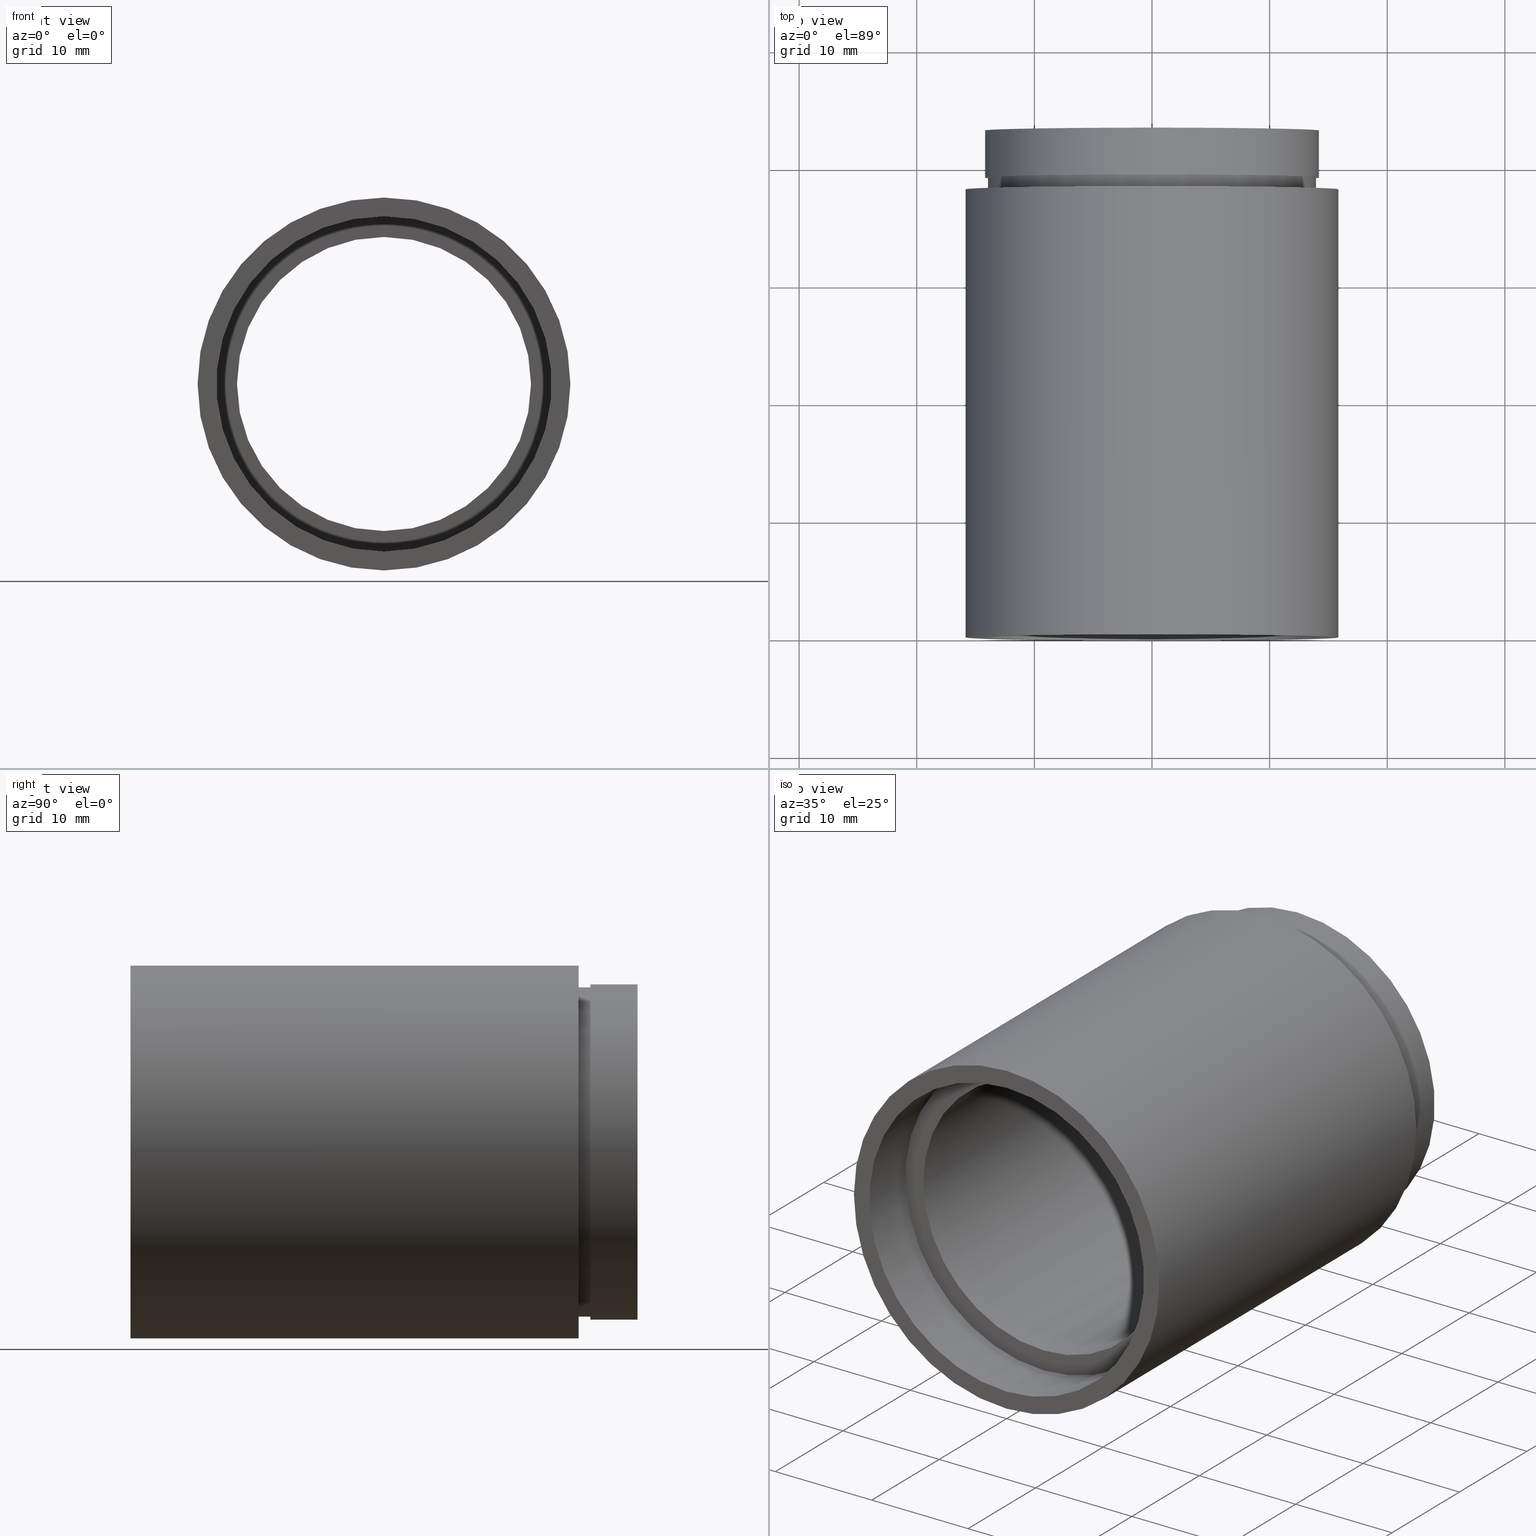
[diagram: canonical four-view strip — front | top / right | iso, engineering-drawing reading convention]
A machine part, canonical four-view strip (front | top / right | iso — engineering-drawing reading convention). The complete STEP part file that produces these views, byte-faithful:
ISO-10303-21;
HEADER;
FILE_DESCRIPTION (( 'STEP AP214' ),
    '1' );
FILE_NAME ('503046.STEP',
    '2019-09-06T06:12:58',
    ( '' ),
    ( '' ),
    'SwSTEP 2.0',
    'SolidWorks 2016',
    '' );
FILE_SCHEMA (( 'AUTOMOTIVE_DESIGN' ));
ENDSEC;

DATA;
#1 = CIRCLE ( 'NONE', #256, 14.00000000000001600 ) ;
#2 = PLANE ( 'NONE',  #366 ) ;
#3 = PRODUCT_DEFINITION ( 'δ֪', '', #525, #484 ) ;
#4 = ADVANCED_FACE ( 'NONE', ( #527, #531 ), #2, .F. ) ;
#5 = CARTESIAN_POINT ( 'NONE',  ( 0.0000000000000000000, 38.09999999999999400, 14.00000000000001600 ) ) ;
#6 = ADVANCED_FACE ( 'NONE', ( #476 ), #107, .T. ) ;
#7 = EDGE_LOOP ( 'NONE', ( #272, #188, #232, #441 ) ) ;
#8 = VECTOR ( 'NONE', #460, 1000.000000000000000 ) ;
#9 = DIRECTION ( 'NONE',  ( -0.0000000000000000000, 1.000000000000000000, -0.0000000000000000000 ) ) ;
#10 = CARTESIAN_POINT ( 'NONE',  ( 1.745121688784980200E-015, 161.3761669434274500, -14.25000000000001600 ) ) ;
#11 = LINE ( 'NONE', #199, #565 ) ;
#12 = VERTEX_POINT ( 'NONE', #5 ) ;
#13 = MECHANICAL_DESIGN_GEOMETRIC_PRESENTATION_REPRESENTATION (  '', ( #601 ), #619 ) ;
#14 =( NAMED_UNIT ( * ) SI_UNIT ( $, .STERADIAN. ) SOLID_ANGLE_UNIT ( ) );
#15 = APPLICATION_CONTEXT ( 'automotive_design' ) ;
#16 = ORIENTED_EDGE ( 'NONE', *, *, #443, .F. ) ;
#17 = EDGE_CURVE ( 'NONE', #12, #415, #181, .T. ) ;
#18 = CARTESIAN_POINT ( 'NONE',  ( 0.0000000000000000000, 39.09999999999999400, 0.0000000000000000000 ) ) ;
#19 = CYLINDRICAL_SURFACE ( 'NONE', #20, 12.50000000000002000 ) ;
#20 = AXIS2_PLACEMENT_3D ( 'NONE', #532, #539, #345 ) ;
#21 = EDGE_CURVE ( 'NONE', #415, #279, #570, .T. ) ;
#22 = CARTESIAN_POINT ( 'NONE',  ( 0.0000000000000000000, 4.500000000000032000, 0.0000000000000000000 ) ) ;
#23 = VECTOR ( 'NONE', #558, 1000.000000000000000 ) ;
#24 = APPLICATION_CONTEXT ( 'automotive_design' ) ;
#25 = PRODUCT_DEFINITION_SHAPE ( 'NONE', 'NONE',  #3 ) ;
#26 = CARTESIAN_POINT ( 'NONE',  ( 0.0000000000000000000, 4.499999999999976000, 0.0000000000000000000 ) ) ;
#27 = MECHANICAL_DESIGN_GEOMETRIC_PRESENTATION_REPRESENTATION (  '', ( #322 ), #89 ) ;
#28 = CIRCLE ( 'NONE', #396, 14.00000000000001600 ) ;
#29 = PRESENTATION_LAYER_ASSIGNMENT (  '', '', ( #583 ) ) ;
#30 = AXIS2_PLACEMENT_3D ( 'NONE', #436, #197, #61 ) ;
#31 = DIRECTION ( 'NONE',  ( -0.0000000000000000000, 1.000000000000000000, -0.0000000000000000000 ) ) ;
#32 = DIRECTION ( 'NONE',  ( 0.0000000000000000000, 0.0000000000000000000, 1.000000000000000000 ) ) ;
#33 = DIRECTION ( 'NONE',  ( -0.0000000000000000000, 1.000000000000000000, 0.0000000000000000000 ) ) ;
#34 = CARTESIAN_POINT ( 'NONE',  ( 12.50000000000002000, 43.09999999999999400, 0.0000000000000000000 ) ) ;
#35 = PRESENTATION_STYLE_ASSIGNMENT (( #65 ) ) ;
#36 = DIRECTION ( 'NONE',  ( -0.0000000000000000000, 1.000000000000000000, -0.0000000000000000000 ) ) ;
#37 = DIRECTION ( 'NONE',  ( 0.0000000000000000000, 0.0000000000000000000, 1.000000000000000000 ) ) ;
#38 = EDGE_LOOP ( 'NONE', ( #189, #217 ) ) ;
#39 = COLOUR_RGB ( '',1.000000000000000000, 1.000000000000000000, 1.000000000000000000 ) ;
#40 = PLANE ( 'NONE',  #519 ) ;
#41 = DIRECTION ( 'NONE',  ( 0.0000000000000000000, 0.0000000000000000000, 1.000000000000000000 ) ) ;
#42 = DIRECTION ( 'NONE',  ( 0.0000000000000000000, 0.0000000000000000000, 1.000000000000000000 ) ) ;
#43 = ORIENTED_EDGE ( 'NONE', *, *, #266, .F. ) ;
#44 = CIRCLE ( 'NONE', #351, 14.25000000000001600 ) ;
#45 = AXIS2_PLACEMENT_3D ( 'NONE', #609, #506, #599 ) ;
#46 = ORIENTED_EDGE ( 'NONE', *, *, #538, .T. ) ;
#47 = EDGE_LOOP ( 'NONE', ( #43, #151, #46, #575 ) ) ;
#48 = EDGE_CURVE ( 'NONE', #12, #485, #321, .T. ) ;
#49 = ORIENTED_EDGE ( 'NONE', *, *, #216, .F. ) ;
#50 = AXIS2_PLACEMENT_3D ( 'NONE', #249, #391, #386 ) ;
#51 = EDGE_CURVE ( 'NONE', #415, #12, #136, .T. ) ;
#52 = DIRECTION ( 'NONE',  ( -0.0000000000000000000, 1.000000000000000000, -0.0000000000000000000 ) ) ;
#53 = VERTEX_POINT ( 'NONE', #336 ) ;
#54 = DIRECTION ( 'NONE',  ( 0.0000000000000000000, 0.0000000000000000000, 1.000000000000000000 ) ) ;
#55 = AXIS2_PLACEMENT_3D ( 'NONE', #497, #501, #260 ) ;
#56 = MECHANICAL_DESIGN_GEOMETRIC_PRESENTATION_REPRESENTATION (  '', ( #583 ), #91 ) ;
#57 = CARTESIAN_POINT ( 'NONE',  ( 0.0000000000000000000, 5.499999999999976900, 0.0000000000000000000 ) ) ;
#58 = AXIS2_PLACEMENT_3D ( 'NONE', #100, #573, #191 ) ;
#59 = CARTESIAN_POINT ( 'NONE',  ( 0.0000000000000000000, 2.775557561562891400E-014, 14.25000000000000000 ) ) ;
#60 = CIRCLE ( 'NONE', #140, 15.85000000000002100 ) ;
#61 = DIRECTION ( 'NONE',  ( 0.0000000000000000000, 0.0000000000000000000, 1.000000000000000000 ) ) ;
#62 = ORIENTED_EDGE ( 'NONE', *, *, #611, .F. ) ;
#63 = EDGE_LOOP ( 'NONE', ( #95, #299, #103, #580 ) ) ;
#64 = PRODUCT_CONTEXT ( 'NONE', #24, 'mechanical' ) ;
#65 = SURFACE_STYLE_USAGE ( .BOTH. , #588 ) ;
#66 = ORIENTED_EDGE ( 'NONE', *, *, #344, .F. ) ;
#67 = SURFACE_SIDE_STYLE ('',( #360 ) ) ;
#68 = CIRCLE ( 'NONE', #618, 14.25000000000000000 ) ;
#69 = DIRECTION ( 'NONE',  ( 0.0000000000000000000, 0.0000000000000000000, 1.000000000000000000 ) ) ;
#70 = EDGE_CURVE ( 'NONE', #485, #279, #28, .T. ) ;
#71 = FILL_AREA_STYLE_COLOUR ( '', #134 ) ;
#72 = DIRECTION ( 'NONE',  ( 0.0000000000000000000, 0.0000000000000000000, 1.000000000000000000 ) ) ;
#73 = CIRCLE ( 'NONE', #50, 14.35000000000001900 ) ;
#74 =( GEOMETRIC_REPRESENTATION_CONTEXT ( 3 ) GLOBAL_UNCERTAINTY_ASSIGNED_CONTEXT ( ( #499 ) ) GLOBAL_UNIT_ASSIGNED_CONTEXT ( ( #174, #212, #405 ) ) REPRESENTATION_CONTEXT ( 'NONE', 'WORKASPACE' ) );
#75 = VERTEX_POINT ( 'NONE', #108 ) ;
#76 = SURFACE_SIDE_STYLE ('',( #500 ) ) ;
#77 = EDGE_CURVE ( 'NONE', #358, #75, #342, .T. ) ;
#78 = VERTEX_POINT ( 'NONE', #59 ) ;
#79 = CARTESIAN_POINT ( 'NONE',  ( 1.757368156776454300E-015, 4.499999999999976000, -14.35000000000001900 ) ) ;
#80 = STYLED_ITEM ( 'NONE', ( #392 ), #139 ) ;
#81 = CARTESIAN_POINT ( 'NONE',  ( 1.714505518806296400E-015, 39.09999999999999400, -14.00000000000001600 ) ) ;
#82 = ORIENTED_EDGE ( 'NONE', *, *, #344, .T. ) ;
#83 = EDGE_CURVE ( 'NONE', #358, #387, #11, .T. ) ;
#84 = CARTESIAN_POINT ( 'NONE',  ( 0.0000000000000000000, 43.10000000000000100, 0.0000000000000000000 ) ) ;
#85 =( NAMED_UNIT ( * ) SI_UNIT ( $, .STERADIAN. ) SOLID_ANGLE_UNIT ( ) );
#86 = ORIENTED_EDGE ( 'NONE', *, *, #202, .T. ) ;
#87 = ORIENTED_EDGE ( 'NONE', *, *, #145, .T. ) ;
#88 = DIRECTION ( 'NONE',  ( 0.0000000000000000000, 0.0000000000000000000, 1.000000000000000000 ) ) ;
#89 =( GEOMETRIC_REPRESENTATION_CONTEXT ( 3 ) GLOBAL_UNCERTAINTY_ASSIGNED_CONTEXT ( ( #99 ) ) GLOBAL_UNIT_ASSIGNED_CONTEXT ( ( #371, #312, #214 ) ) REPRESENTATION_CONTEXT ( 'NONE', 'WORKASPACE' ) );
#90 = FACE_OUTER_BOUND ( 'NONE', #63, .T. ) ;
#91 =( GEOMETRIC_REPRESENTATION_CONTEXT ( 3 ) GLOBAL_UNCERTAINTY_ASSIGNED_CONTEXT ( ( #383 ) ) GLOBAL_UNIT_ASSIGNED_CONTEXT ( ( #428, #147, #361 ) ) REPRESENTATION_CONTEXT ( 'NONE', 'WORKASPACE' ) );
#92 = EDGE_CURVE ( 'NONE', #109, #540, #467, .T. ) ;
#93 = ADVANCED_FACE ( 'NONE', ( #420, #195 ), #444, .F. ) ;
#94 = ORIENTED_EDGE ( 'NONE', *, *, #154, .T. ) ;
#95 = ORIENTED_EDGE ( 'NONE', *, *, #83, .F. ) ;
#96 = DIRECTION ( 'NONE',  ( -0.0000000000000000000, 1.000000000000000000, -0.0000000000000000000 ) ) ;
#97 = DIRECTION ( 'NONE',  ( 0.0000000000000000000, -0.0000000000000000000, -1.000000000000000000 ) ) ;
#98 = FACE_OUTER_BOUND ( 'NONE', #528, .T. ) ;
#99 = UNCERTAINTY_MEASURE_WITH_UNIT (LENGTH_MEASURE( 1.000000000000000100E-005 ), #371, 'distance_accuracy_value', 'NONE');
#100 = CARTESIAN_POINT ( 'NONE',  ( 0.0000000000000000000, 161.3761669434274500, 0.0000000000000000000 ) ) ;
#101 = ADVANCED_FACE ( 'NONE', ( #425 ), #19, .F. ) ;
#102 = VERTEX_POINT ( 'NONE', #530 ) ;
#103 = ORIENTED_EDGE ( 'NONE', *, *, #258, .T. ) ;
#104 = DIRECTION ( 'NONE',  ( -0.0000000000000000000, 1.000000000000000000, -0.0000000000000000000 ) ) ;
#105 = DIRECTION ( 'NONE',  ( -0.0000000000000000000, 1.000000000000000000, -0.0000000000000000000 ) ) ;
#106 = PRESENTATION_STYLE_ASSIGNMENT (( #277 ) ) ;
#107 = CYLINDRICAL_SURFACE ( 'NONE', #58, 15.85000000000002100 ) ;
#108 = CARTESIAN_POINT ( 'NONE',  ( 0.0000000000000000000, 4.499999999999976000, 14.35000000000001900 ) ) ;
#109 = VERTEX_POINT ( 'NONE', #113 ) ;
#110 =( NAMED_UNIT ( * ) SI_UNIT ( $, .STERADIAN. ) SOLID_ANGLE_UNIT ( ) );
#111 = PRESENTATION_LAYER_ASSIGNMENT (  '', '', ( #601 ) ) ;
#112 = EDGE_CURVE ( 'NONE', #434, #387, #73, .T. ) ;
#113 = CARTESIAN_POINT ( 'NONE',  ( 0.0000000000000000000, 43.10000000000000100, 14.25000000000001600 ) ) ;
#114 = ORIENTED_EDGE ( 'NONE', *, *, #511, .T. ) ;
#115 = PRESENTATION_STYLE_ASSIGNMENT (( #130 ) ) ;
#116 = PRESENTATION_LAYER_ASSIGNMENT (  '', '', ( #80 ) ) ;
#117 =( LENGTH_UNIT ( ) NAMED_UNIT ( * ) SI_UNIT ( .MILLI., .METRE. ) );
#118 = UNCERTAINTY_MEASURE_WITH_UNIT (LENGTH_MEASURE( 1.000000000000000100E-005 ), #349, 'distance_accuracy_value', 'NONE');
#119 = CARTESIAN_POINT ( 'NONE',  ( 0.0000000000000000000, 5.499999999999976900, 0.0000000000000000000 ) ) ;
#120 = AXIS2_PLACEMENT_3D ( 'NONE', #516, #269, #615 ) ;
#121 = EDGE_LOOP ( 'NONE', ( #16, #200, #94, #543 ) ) ;
#122 = SURFACE_STYLE_USAGE ( .BOTH. , #76 ) ;
#123 = ORIENTED_EDGE ( 'NONE', *, *, #275, .F. ) ;
#124 = EDGE_CURVE ( 'NONE', #384, #522, #159, .T. ) ;
#125 = CARTESIAN_POINT ( 'NONE',  ( 0.0000000000000000000, 2.775557561562891400E-014, 0.0000000000000000000 ) ) ;
#126 = DIRECTION ( 'NONE',  ( 0.0000000000000000000, 0.0000000000000000000, 1.000000000000000000 ) ) ;
#127 = LINE ( 'NONE', #357, #23 ) ;
#128 = DIRECTION ( 'NONE',  ( -0.0000000000000000000, 1.000000000000000000, -0.0000000000000000000 ) ) ;
#129 = DIRECTION ( 'NONE',  ( 0.0000000000000000000, 0.0000000000000000000, 1.000000000000000000 ) ) ;
#130 = SURFACE_STYLE_USAGE ( .BOTH. , #606 ) ;
#131 = SURFACE_STYLE_FILL_AREA ( #211 ) ;
#132 = PLANE ( 'NONE',  #340 ) ;
#133 = FILL_AREA_STYLE_COLOUR ( '', #250 ) ;
#134 = COLOUR_RGB ( '',1.000000000000000000, 1.000000000000000000, 1.000000000000000000 ) ;
#135 = EDGE_CURVE ( 'NONE', #555, #540, #146, .T. ) ;
#136 = CIRCLE ( 'NONE', #30, 14.00000000000001600 ) ;
#137 = COLOUR_RGB ( '',1.000000000000000000, 1.000000000000000000, 1.000000000000000000 ) ;
#138 = ORIENTED_EDGE ( 'NONE', *, *, #511, .F. ) ;
#139 = ADVANCED_FACE ( 'NONE', ( #251 ), #242, .F. ) ;
#140 = AXIS2_PLACEMENT_3D ( 'NONE', #374, #320, #42 ) ;
#141 = ADVANCED_FACE ( 'NONE', ( #591 ), #257, .F. ) ;
#142 = EDGE_LOOP ( 'NONE', ( #461, #301 ) ) ;
#143 = DIRECTION ( 'NONE',  ( 0.0000000000000000000, 0.0000000000000000000, 1.000000000000000000 ) ) ;
#144 = SURFACE_STYLE_FILL_AREA ( #622 ) ;
#145 = EDGE_CURVE ( 'NONE', #616, #555, #44, .T. ) ;
#146 = LINE ( 'NONE', #10, #513 ) ;
#147 =( NAMED_UNIT ( * ) PLANE_ANGLE_UNIT ( ) SI_UNIT ( $, .RADIAN. ) );
#148 = ADVANCED_FACE ( 'NONE', ( #346 ), #408, .F. ) ;
#149 = MECHANICAL_DESIGN_GEOMETRIC_PRESENTATION_REPRESENTATION (  '', ( #80 ), #177 ) ;
#150 = FACE_BOUND ( 'NONE', #364, .T. ) ;
#151 = ORIENTED_EDGE ( 'NONE', *, *, #604, .T. ) ;
#152 = AXIS2_PLACEMENT_3D ( 'NONE', #26, #203, #72 ) ;
#153 = AXIS2_PLACEMENT_3D ( 'NONE', #562, #230, #88 ) ;
#154 = EDGE_CURVE ( 'NONE', #308, #430, #495, .T. ) ;
#155 = DIRECTION ( 'NONE',  ( -0.0000000000000000000, 1.000000000000000000, -0.0000000000000000000 ) ) ;
#156 = DIRECTION ( 'NONE',  ( 0.0000000000000000000, 0.0000000000000000000, 1.000000000000000000 ) ) ;
#157 = ORIENTED_EDGE ( 'NONE', *, *, #154, .F. ) ;
#158 = DIRECTION ( 'NONE',  ( -0.0000000000000000000, 1.000000000000000000, -0.0000000000000000000 ) ) ;
#159 = LINE ( 'NONE', #196, #265 ) ;
#160 =( NAMED_UNIT ( * ) PLANE_ANGLE_UNIT ( ) SI_UNIT ( $, .RADIAN. ) );
#161 = ORIENTED_EDGE ( 'NONE', *, *, #237, .T. ) ;
#162 = SHAPE_DEFINITION_REPRESENTATION ( #25, #399 ) ;
#163 = PRODUCT_RELATED_PRODUCT_CATEGORY ( 'part', '', ( #620 ) ) ;
#164 = ORIENTED_EDGE ( 'NONE', *, *, #287, .F. ) ;
#165 =( NAMED_UNIT ( * ) PLANE_ANGLE_UNIT ( ) SI_UNIT ( $, .RADIAN. ) );
#166 = UNCERTAINTY_MEASURE_WITH_UNIT (LENGTH_MEASURE( 1.000000000000000100E-005 ), #209, 'distance_accuracy_value', 'NONE');
#167 = CARTESIAN_POINT ( 'NONE',  ( 0.0000000000000000000, -2.775557561562891400E-014, 15.85000000000002100 ) ) ;
#168 = ORIENTED_EDGE ( 'NONE', *, *, #443, .T. ) ;
#169 = DIRECTION ( 'NONE',  ( -0.0000000000000000000, 1.000000000000000000, -0.0000000000000000000 ) ) ;
#170 = DIRECTION ( 'NONE',  ( 0.0000000000000000000, 0.0000000000000000000, 1.000000000000000000 ) ) ;
#171 = EDGE_LOOP ( 'NONE', ( #86, #624 ) ) ;
#172 = EDGE_LOOP ( 'NONE', ( #402, #288 ) ) ;
#173 = DIRECTION ( 'NONE',  ( 0.0000000000000000000, 0.0000000000000000000, 1.000000000000000000 ) ) ;
#174 =( LENGTH_UNIT ( ) NAMED_UNIT ( * ) SI_UNIT ( .MILLI., .METRE. ) );
#175 = ORIENTED_EDGE ( 'NONE', *, *, #135, .T. ) ;
#176 = EDGE_LOOP ( 'NONE', ( #62, #157 ) ) ;
#177 =( GEOMETRIC_REPRESENTATION_CONTEXT ( 3 ) GLOBAL_UNCERTAINTY_ASSIGNED_CONTEXT ( ( #118 ) ) GLOBAL_UNIT_ASSIGNED_CONTEXT ( ( #349, #546, #452 ) ) REPRESENTATION_CONTEXT ( 'NONE', 'WORKASPACE' ) );
#178 = CIRCLE ( 'NONE', #568, 14.25000000000001600 ) ;
#179 = CARTESIAN_POINT ( 'NONE',  ( 1.745121688784978200E-015, 4.500000000000032000, -14.25000000000000000 ) ) ;
#180 = FILL_AREA_STYLE ('',( #564 ) ) ;
#181 = CIRCLE ( 'NONE', #328, 14.00000000000001600 ) ;
#182 = SURFACE_STYLE_FILL_AREA ( #442 ) ;
#183 = MECHANICAL_DESIGN_GEOMETRIC_PRESENTATION_REPRESENTATION (  '', ( #487 ), #385 ) ;
#184 = PRESENTATION_LAYER_ASSIGNMENT (  '', '', ( #406 ) ) ;
#185 = EDGE_CURVE ( 'NONE', #555, #616, #178, .T. ) ;
#186 = CARTESIAN_POINT ( 'NONE',  ( 1.745121688784980200E-015, 43.10000000000000100, -14.25000000000001600 ) ) ;
#187 = CYLINDRICAL_SURFACE ( 'NONE', #245, 14.25000000000001600 ) ;
#188 = ORIENTED_EDGE ( 'NONE', *, *, #51, .T. ) ;
#189 = ORIENTED_EDGE ( 'NONE', *, *, #112, .F. ) ;
#190 = FILL_AREA_STYLE_COLOUR ( '', #584 ) ;
#191 = DIRECTION ( 'NONE',  ( 0.0000000000000000000, 0.0000000000000000000, 1.000000000000000000 ) ) ;
#192 = DIRECTION ( 'NONE',  ( 0.0000000000000000000, 0.0000000000000000000, 1.000000000000000000 ) ) ;
#193 = VECTOR ( 'NONE', #309, 1000.000000000000000 ) ;
#194 = CIRCLE ( 'NONE', #120, 15.85000000000002100 ) ;
#195 = FACE_OUTER_BOUND ( 'NONE', #171, .T. ) ;
#196 = CARTESIAN_POINT ( 'NONE',  ( 0.0000000000000000000, 161.3761669434274500, 12.50000000000002000 ) ) ;
#197 = DIRECTION ( 'NONE',  ( -0.0000000000000000000, 1.000000000000000000, -0.0000000000000000000 ) ) ;
#198 = DIRECTION ( 'NONE',  ( 0.0000000000000000000, 0.0000000000000000000, 1.000000000000000000 ) ) ;
#199 = CARTESIAN_POINT ( 'NONE',  ( 1.757368156776454300E-015, 161.3761669434274500, -14.35000000000001900 ) ) ;
#200 = ORIENTED_EDGE ( 'NONE', *, *, #293, .T. ) ;
#201 = ORIENTED_EDGE ( 'NONE', *, *, #17, .T. ) ;
#202 = EDGE_CURVE ( 'NONE', #75, #358, #517, .T. ) ;
#203 = DIRECTION ( 'NONE',  ( -0.0000000000000000000, 1.000000000000000000, -0.0000000000000000000 ) ) ;
#204 = LINE ( 'NONE', #417, #8 ) ;
#205 = EDGE_LOOP ( 'NONE', ( #602, #479 ) ) ;
#206 = FILL_AREA_STYLE ('',( #71 ) ) ;
#207 = UNCERTAINTY_MEASURE_WITH_UNIT (LENGTH_MEASURE( 1.000000000000000100E-005 ), #466, 'distance_accuracy_value', 'NONE');
#208 = ORIENTED_EDGE ( 'NONE', *, *, #325, .T. ) ;
#209 =( LENGTH_UNIT ( ) NAMED_UNIT ( * ) SI_UNIT ( .MILLI., .METRE. ) );
#210 = CYLINDRICAL_SURFACE ( 'NONE', #303, 12.50000000000002000 ) ;
#211 = FILL_AREA_STYLE ('',( #243 ) ) ;
#212 =( NAMED_UNIT ( * ) PLANE_ANGLE_UNIT ( ) SI_UNIT ( $, .RADIAN. ) );
#213 = AXIS2_PLACEMENT_3D ( 'NONE', #119, #350, #69 ) ;
#214 =( NAMED_UNIT ( * ) SI_UNIT ( $, .STERADIAN. ) SOLID_ANGLE_UNIT ( ) );
#215 = DIRECTION ( 'NONE',  ( -0.0000000000000000000, 1.000000000000000000, -0.0000000000000000000 ) ) ;
#216 = EDGE_CURVE ( 'NONE', #594, #384, #274, .T. ) ;
#217 = ORIENTED_EDGE ( 'NONE', *, *, #379, .F. ) ;
#218 = FILL_AREA_STYLE ('',( #515 ) ) ;
#219 = DIRECTION ( 'NONE',  ( -0.0000000000000000000, 1.000000000000000000, -0.0000000000000000000 ) ) ;
#220 = DIRECTION ( 'NONE',  ( -0.0000000000000000000, 1.000000000000000000, -0.0000000000000000000 ) ) ;
#221 = DIRECTION ( 'NONE',  ( -0.0000000000000000000, 1.000000000000000000, -0.0000000000000000000 ) ) ;
#222 = DIRECTION ( 'NONE',  ( -0.0000000000000000000, 1.000000000000000000, -0.0000000000000000000 ) ) ;
#223 = ORIENTED_EDGE ( 'NONE', *, *, #275, .T. ) ;
#224 = DIRECTION ( 'NONE',  ( -0.0000000000000000000, 1.000000000000000000, 0.0000000000000000000 ) ) ;
#225 = DIRECTION ( 'NONE',  ( -0.0000000000000000000, 1.000000000000000000, -0.0000000000000000000 ) ) ;
#226 = DIRECTION ( 'NONE',  ( -0.0000000000000000000, 1.000000000000000000, -0.0000000000000000000 ) ) ;
#227 = PRESENTATION_LAYER_ASSIGNMENT (  '', '', ( #322 ) ) ;
#228 = SURFACE_STYLE_USAGE ( .BOTH. , #518 ) ;
#229 = UNCERTAINTY_MEASURE_WITH_UNIT (LENGTH_MEASURE( 1.000000000000000100E-005 ), #117, 'distance_accuracy_value', 'NONE');
#230 = DIRECTION ( 'NONE',  ( -0.0000000000000000000, 1.000000000000000000, -0.0000000000000000000 ) ) ;
#231 = LINE ( 'NONE', #514, #331 ) ;
#232 = ORIENTED_EDGE ( 'NONE', *, *, #48, .T. ) ;
#233 = SURFACE_SIDE_STYLE ('',( #144 ) ) ;
#234 = DIRECTION ( 'NONE',  ( 0.0000000000000000000, -1.000000000000000000, 0.0000000000000000000 ) ) ;
#235 = PRESENTATION_STYLE_ASSIGNMENT (( #447 ) ) ;
#236 = ORIENTED_EDGE ( 'NONE', *, *, #237, .F. ) ;
#237 = EDGE_CURVE ( 'NONE', #384, #594, #295, .T. ) ;
#238 = DIRECTION ( 'NONE',  ( -0.0000000000000000000, 1.000000000000000000, -0.0000000000000000000 ) ) ;
#239 = PRESENTATION_LAYER_ASSIGNMENT (  '', '', ( #268 ) ) ;
#240 = EDGE_CURVE ( 'NONE', #53, #492, #282, .T. ) ;
#241 = EDGE_LOOP ( 'NONE', ( #400, #329 ) ) ;
#242 = CYLINDRICAL_SURFACE ( 'NONE', #507, 14.25000000000000000 ) ;
#243 = FILL_AREA_STYLE_COLOUR ( '', #382 ) ;
#244 = AXIS2_PLACEMENT_3D ( 'NONE', #414, #264, #381 ) ;
#245 = AXIS2_PLACEMENT_3D ( 'NONE', #470, #318, #473 ) ;
#246 = DIRECTION ( 'NONE',  ( -0.0000000000000000000, 1.000000000000000000, -0.0000000000000000000 ) ) ;
#247 = VERTEX_POINT ( 'NONE', #167 ) ;
#248 = EDGE_CURVE ( 'NONE', #279, #485, #1, .T. ) ;
#249 = CARTESIAN_POINT ( 'NONE',  ( 0.0000000000000000000, 5.499999999999976900, 0.0000000000000000000 ) ) ;
#250 = COLOUR_RGB ( '',1.000000000000000000, 1.000000000000000000, 1.000000000000000000 ) ;
#251 = FACE_OUTER_BOUND ( 'NONE', #121, .T. ) ;
#252 = CARTESIAN_POINT ( 'NONE',  ( 0.0000000000000000000, 0.0000000000000000000, 0.0000000000000000000 ) ) ;
#253 = CARTESIAN_POINT ( 'NONE',  ( 0.0000000000000000000, 39.09999999999999400, 0.0000000000000000000 ) ) ;
#254 = ORIENTED_EDGE ( 'NONE', *, *, #51, .F. ) ;
#255 = DIRECTION ( 'NONE',  ( -0.0000000000000000000, 1.000000000000000000, -0.0000000000000000000 ) ) ;
#256 = AXIS2_PLACEMENT_3D ( 'NONE', #267, #221, #170 ) ;
#257 = CYLINDRICAL_SURFACE ( 'NONE', #55, 14.35000000000001900 ) ;
#258 = EDGE_CURVE ( 'NONE', #75, #434, #270, .T. ) ;
#259 = ORIENTED_EDGE ( 'NONE', *, *, #480, .F. ) ;
#260 = DIRECTION ( 'NONE',  ( 0.0000000000000000000, 0.0000000000000000000, 1.000000000000000000 ) ) ;
#261 = CARTESIAN_POINT ( 'NONE',  ( 0.0000000000000000000, 161.3761669434274500, 0.0000000000000000000 ) ) ;
#262 = CARTESIAN_POINT ( 'NONE',  ( 0.0000000000000000000, 161.3761669434274500, 0.0000000000000000000 ) ) ;
#263 = CARTESIAN_POINT ( 'NONE',  ( 0.0000000000000000000, 161.3761669434274500, 0.0000000000000000000 ) ) ;
#264 = DIRECTION ( 'NONE',  ( -0.0000000000000000000, 1.000000000000000000, -0.0000000000000000000 ) ) ;
#265 = VECTOR ( 'NONE', #9, 1000.000000000000000 ) ;
#266 = EDGE_CURVE ( 'NONE', #102, #53, #534, .T. ) ;
#267 = CARTESIAN_POINT ( 'NONE',  ( 0.0000000000000000000, 39.09999999999999400, 0.0000000000000000000 ) ) ;
#268 = STYLED_ITEM ( 'NONE', ( #35 ), #101 ) ;
#269 = DIRECTION ( 'NONE',  ( -0.0000000000000000000, 1.000000000000000000, -0.0000000000000000000 ) ) ;
#270 = LINE ( 'NONE', #612, #193 ) ;
#271 = DIRECTION ( 'NONE',  ( 0.0000000000000000000, 0.0000000000000000000, 1.000000000000000000 ) ) ;
#272 = ORIENTED_EDGE ( 'NONE', *, *, #21, .F. ) ;
#273 = AXIS2_PLACEMENT_3D ( 'NONE', #483, #238, #192 ) ;
#274 = CIRCLE ( 'NONE', #474, 12.50000000000002000 ) ;
#275 = EDGE_CURVE ( 'NONE', #317, #522, #389, .T. ) ;
#276 = ORIENTED_EDGE ( 'NONE', *, *, #293, .F. ) ;
#277 = SURFACE_STYLE_USAGE ( .BOTH. , #233 ) ;
#278 = ADVANCED_FACE ( 'NONE', ( #150, #314 ), #40, .F. ) ;
#279 = VERTEX_POINT ( 'NONE', #81 ) ;
#280 = ORIENTED_EDGE ( 'NONE', *, *, #92, .F. ) ;
#281 = CARTESIAN_POINT ( 'NONE',  ( 14.00000000000001600, 38.09999999999998700, 0.0000000000000000000 ) ) ;
#282 = CIRCLE ( 'NONE', #454, 15.85000000000002100 ) ;
#283 = AXIS2_PLACEMENT_3D ( 'NONE', #512, #31, #463 ) ;
#284 = CIRCLE ( 'NONE', #273, 14.25000000000000000 ) ;
#285 =( NAMED_UNIT ( * ) PLANE_ANGLE_UNIT ( ) SI_UNIT ( $, .RADIAN. ) );
#286 = SURFACE_STYLE_FILL_AREA ( #585 ) ;
#287 = EDGE_CURVE ( 'NONE', #78, #557, #68, .T. ) ;
#288 = ORIENTED_EDGE ( 'NONE', *, *, #248, .T. ) ;
#289 =( LENGTH_UNIT ( ) NAMED_UNIT ( * ) SI_UNIT ( .MILLI., .METRE. ) );
#290 = PRESENTATION_STYLE_ASSIGNMENT (( #228 ) ) ;
#291 = ORIENTED_EDGE ( 'NONE', *, *, #70, .F. ) ;
#292 = EDGE_LOOP ( 'NONE', ( #201, #496, #291, #413 ) ) ;
#293 = EDGE_CURVE ( 'NONE', #557, #308, #204, .T. ) ;
#294 = DIRECTION ( 'NONE',  ( -0.0000000000000000000, 1.000000000000000000, -0.0000000000000000000 ) ) ;
#295 = CIRCLE ( 'NONE', #213, 12.50000000000002000 ) ;
#296 = AXIS2_PLACEMENT_3D ( 'NONE', #491, #104, #490 ) ;
#297 = SURFACE_STYLE_USAGE ( .BOTH. , #450 ) ;
#298 = COLOUR_RGB ( '',1.000000000000000000, 1.000000000000000000, 1.000000000000000000 ) ;
#299 = ORIENTED_EDGE ( 'NONE', *, *, #202, .F. ) ;
#300 = DIRECTION ( 'NONE',  ( -0.0000000000000000000, 1.000000000000000000, -0.0000000000000000000 ) ) ;
#301 = ORIENTED_EDGE ( 'NONE', *, *, #240, .T. ) ;
#302 = SURFACE_SIDE_STYLE ('',( #131 ) ) ;
#303 = AXIS2_PLACEMENT_3D ( 'NONE', #262, #359, #37 ) ;
#304 =( GEOMETRIC_REPRESENTATION_CONTEXT ( 3 ) GLOBAL_UNCERTAINTY_ASSIGNED_CONTEXT ( ( #472 ) ) GLOBAL_UNIT_ASSIGNED_CONTEXT ( ( #422, #567, #85 ) ) REPRESENTATION_CONTEXT ( 'NONE', 'WORKASPACE' ) );
#305 = DIRECTION ( 'NONE',  ( 0.0000000000000000000, -0.0000000000000000000, -1.000000000000000000 ) ) ;
#306 = CYLINDRICAL_SURFACE ( 'NONE', #489, 14.00000000000001600 ) ;
#307 = EDGE_CURVE ( 'NONE', #540, #109, #524, .T. ) ;
#308 = VERTEX_POINT ( 'NONE', #179 ) ;
#309 = DIRECTION ( 'NONE',  ( -0.0000000000000000000, 1.000000000000000000, -0.0000000000000000000 ) ) ;
#310 = ORIENTED_EDGE ( 'NONE', *, *, #258, .F. ) ;
#311 = ORIENTED_EDGE ( 'NONE', *, *, #124, .T. ) ;
#312 =( NAMED_UNIT ( * ) PLANE_ANGLE_UNIT ( ) SI_UNIT ( $, .RADIAN. ) );
#313 = EDGE_LOOP ( 'NONE', ( #49, #114, #223, #505 ) ) ;
#314 = FACE_OUTER_BOUND ( 'NONE', #241, .T. ) ;
#315 = DIRECTION ( 'NONE',  ( 0.0000000000000000000, 0.0000000000000000000, 1.000000000000000000 ) ) ;
#316 = PLANE ( 'NONE',  #551 ) ;
#317 = VERTEX_POINT ( 'NONE', #362 ) ;
#318 = DIRECTION ( 'NONE',  ( -0.0000000000000000000, 1.000000000000000000, -0.0000000000000000000 ) ) ;
#319 = CARTESIAN_POINT ( 'NONE',  ( 0.0000000000000000000, 38.09999999999999400, 15.85000000000002100 ) ) ;
#320 = DIRECTION ( 'NONE',  ( -0.0000000000000000000, 1.000000000000000000, -0.0000000000000000000 ) ) ;
#321 = LINE ( 'NONE', #427, #548 ) ;
#322 = STYLED_ITEM ( 'NONE', ( #545 ), #334 ) ;
#323 = CARTESIAN_POINT ( 'NONE',  ( 0.0000000000000000000, 161.3761669434274500, 0.0000000000000000000 ) ) ;
#324 = SURFACE_STYLE_FILL_AREA ( #411 ) ;
#325 = EDGE_CURVE ( 'NONE', #616, #109, #127, .T. ) ;
#326 = FACE_OUTER_BOUND ( 'NONE', #504, .T. ) ;
#327 = ORIENTED_EDGE ( 'NONE', *, *, #574, .F. ) ;
#328 = AXIS2_PLACEMENT_3D ( 'NONE', #586, #581, #198 ) ;
#329 = ORIENTED_EDGE ( 'NONE', *, *, #307, .T. ) ;
#330 = CARTESIAN_POINT ( 'NONE',  ( 1.714505518806296400E-015, 161.3761669434274500, -14.00000000000001600 ) ) ;
#331 = VECTOR ( 'NONE', #215, 1000.000000000000000 ) ;
#332 = AXIS2_PLACEMENT_3D ( 'NONE', #536, #158, #590 ) ;
#333 = ORIENTED_EDGE ( 'NONE', *, *, #266, .T. ) ;
#334 = ADVANCED_FACE ( 'NONE', ( #448 ), #210, .F. ) ;
#335 = UNCERTAINTY_MEASURE_WITH_UNIT (LENGTH_MEASURE( 1.000000000000000100E-005 ), #289, 'distance_accuracy_value', 'NONE');
#336 = CARTESIAN_POINT ( 'NONE',  ( 1.941065176648557100E-015, 38.09999999999999400, -15.85000000000002100 ) ) ;
#337 = ADVANCED_FACE ( 'NONE', ( #397, #597 ), #132, .F. ) ;
#338 = CIRCLE ( 'NONE', #244, 12.50000000000002000 ) ;
#339 = DIRECTION ( 'NONE',  ( -0.0000000000000000000, 1.000000000000000000, -0.0000000000000000000 ) ) ;
#340 = AXIS2_PLACEMENT_3D ( 'NONE', #510, #224, #559 ) ;
#341 = AXIS2_PLACEMENT_3D ( 'NONE', #553, #33, #373 ) ;
#342 = CIRCLE ( 'NONE', #296, 14.35000000000001900 ) ;
#343 = EDGE_LOOP ( 'NONE', ( #138, #236, #311, #82 ) ) ;
#344 = EDGE_CURVE ( 'NONE', #522, #317, #338, .T. ) ;
#345 = DIRECTION ( 'NONE',  ( 0.0000000000000000000, 0.0000000000000000000, 1.000000000000000000 ) ) ;
#346 = FACE_OUTER_BOUND ( 'NONE', #589, .T. ) ;
#347 = EDGE_LOOP ( 'NONE', ( #161, #446 ) ) ;
#348 = CARTESIAN_POINT ( 'NONE',  ( 0.0000000000000000000, 38.09999999999999400, 0.0000000000000000000 ) ) ;
#349 =( LENGTH_UNIT ( ) NAMED_UNIT ( * ) SI_UNIT ( .MILLI., .METRE. ) );
#350 = DIRECTION ( 'NONE',  ( -0.0000000000000000000, 1.000000000000000000, -0.0000000000000000000 ) ) ;
#351 = AXIS2_PLACEMENT_3D ( 'NONE', #398, #255, #457 ) ;
#352 =( NAMED_UNIT ( * ) SI_UNIT ( $, .STERADIAN. ) SOLID_ANGLE_UNIT ( ) );
#353 = CARTESIAN_POINT ( 'NONE',  ( 0.0000000000000000000, 5.499999999999976900, 12.50000000000002000 ) ) ;
#354 = VECTOR ( 'NONE', #52, 1000.000000000000000 ) ;
#355 = PRESENTATION_STYLE_ASSIGNMENT (( #297 ) ) ;
#356 = ORIENTED_EDGE ( 'NONE', *, *, #287, .T. ) ;
#357 = CARTESIAN_POINT ( 'NONE',  ( 0.0000000000000000000, 161.3761669434274500, 14.25000000000001600 ) ) ;
#358 = VERTEX_POINT ( 'NONE', #79 ) ;
#359 = DIRECTION ( 'NONE',  ( -0.0000000000000000000, 1.000000000000000000, -0.0000000000000000000 ) ) ;
#360 = SURFACE_STYLE_FILL_AREA ( #206 ) ;
#361 =( NAMED_UNIT ( * ) SI_UNIT ( $, .STERADIAN. ) SOLID_ANGLE_UNIT ( ) );
#362 = CARTESIAN_POINT ( 'NONE',  ( 1.530808498934193900E-015, 43.10000000000000100, -12.50000000000002000 ) ) ;
#363 = CARTESIAN_POINT ( 'NONE',  ( 0.0000000000000000000, 5.499999999999976900, 14.35000000000001900 ) ) ;
#364 = EDGE_LOOP ( 'NONE', ( #66, #123 ) ) ;
#365 = VECTOR ( 'NONE', #225, 1000.000000000000000 ) ;
#366 = AXIS2_PLACEMENT_3D ( 'NONE', #281, #234, #97 ) ;
#367 = CARTESIAN_POINT ( 'NONE',  ( 0.0000000000000000000, 43.10000000000000100, 12.50000000000002000 ) ) ;
#368 = CARTESIAN_POINT ( 'NONE',  ( 0.0000000000000000000, 2.775557561562891400E-014, 0.0000000000000000000 ) ) ;
#369 = CARTESIAN_POINT ( 'NONE',  ( 0.0000000000000000000, -2.775557561562891400E-014, 0.0000000000000000000 ) ) ;
#370 = MECHANICAL_DESIGN_GEOMETRIC_PRESENTATION_REPRESENTATION (  '', ( #268 ), #608 ) ;
#371 =( LENGTH_UNIT ( ) NAMED_UNIT ( * ) SI_UNIT ( .MILLI., .METRE. ) );
#372 = CARTESIAN_POINT ( 'NONE',  ( 0.0000000000000000000, 39.09999999999999400, 14.00000000000001600 ) ) ;
#373 = DIRECTION ( 'NONE',  ( 0.0000000000000000000, 0.0000000000000000000, 1.000000000000000000 ) ) ;
#374 = CARTESIAN_POINT ( 'NONE',  ( 0.0000000000000000000, -2.775557561562891400E-014, 0.0000000000000000000 ) ) ;
#375 = COLOUR_RGB ( '',1.000000000000000000, 1.000000000000000000, 1.000000000000000000 ) ;
#376 = AXIS2_PLACEMENT_3D ( 'NONE', #57, #404, #603 ) ;
#377 = ORIENTED_EDGE ( 'NONE', *, *, #17, .F. ) ;
#378 = ADVANCED_FACE ( 'NONE', ( #90 ), #471, .F. ) ;
#379 = EDGE_CURVE ( 'NONE', #387, #434, #458, .T. ) ;
#380 = ADVANCED_FACE ( 'NONE', ( #605 ), #412, .T. ) ;
#381 = DIRECTION ( 'NONE',  ( 0.0000000000000000000, 0.0000000000000000000, 1.000000000000000000 ) ) ;
#382 = COLOUR_RGB ( '',1.000000000000000000, 1.000000000000000000, 1.000000000000000000 ) ;
#383 = UNCERTAINTY_MEASURE_WITH_UNIT (LENGTH_MEASURE( 1.000000000000000100E-005 ), #428, 'distance_accuracy_value', 'NONE');
#384 = VERTEX_POINT ( 'NONE', #353 ) ;
#385 =( GEOMETRIC_REPRESENTATION_CONTEXT ( 3 ) GLOBAL_UNCERTAINTY_ASSIGNED_CONTEXT ( ( #229 ) ) GLOBAL_UNIT_ASSIGNED_CONTEXT ( ( #117, #165, #352 ) ) REPRESENTATION_CONTEXT ( 'NONE', 'WORKASPACE' ) );
#386 = DIRECTION ( 'NONE',  ( 0.0000000000000000000, 0.0000000000000000000, 1.000000000000000000 ) ) ;
#387 = VERTEX_POINT ( 'NONE', #459 ) ;
#388 = CARTESIAN_POINT ( 'NONE',  ( 0.0000000000000000000, 161.3761669434274500, 0.0000000000000000000 ) ) ;
#389 = CIRCLE ( 'NONE', #582, 12.50000000000002000 ) ;
#390 = FACE_OUTER_BOUND ( 'NONE', #38, .T. ) ;
#391 = DIRECTION ( 'NONE',  ( -0.0000000000000000000, 1.000000000000000000, -0.0000000000000000000 ) ) ;
#392 = PRESENTATION_STYLE_ASSIGNMENT (( #498 ) ) ;
#393 = APPLICATION_PROTOCOL_DEFINITION ( 'draft international standard', 'automotive_design', 1998, #15 ) ;
#394 = ORIENTED_EDGE ( 'NONE', *, *, #410, .T. ) ;
#395 = DIRECTION ( 'NONE',  ( 0.0000000000000000000, 0.0000000000000000000, 1.000000000000000000 ) ) ;
#396 = AXIS2_PLACEMENT_3D ( 'NONE', #18, #246, #54 ) ;
#397 = FACE_OUTER_BOUND ( 'NONE', #453, .T. ) ;
#398 = CARTESIAN_POINT ( 'NONE',  ( 0.0000000000000000000, 39.09999999999999400, 0.0000000000000000000 ) ) ;
#399 = ADVANCED_BREP_SHAPE_REPRESENTATION ( '503046', ( #520, #416 ), #304 ) ;
#400 = ORIENTED_EDGE ( 'NONE', *, *, #92, .T. ) ;
#401 = CARTESIAN_POINT ( 'NONE',  ( 0.0000000000000000000, 161.3761669434274500, 0.0000000000000000000 ) ) ;
#402 = ORIENTED_EDGE ( 'NONE', *, *, #70, .T. ) ;
#403 =( NAMED_UNIT ( * ) SI_UNIT ( $, .STERADIAN. ) SOLID_ANGLE_UNIT ( ) );
#404 = DIRECTION ( 'NONE',  ( -0.0000000000000000000, 1.000000000000000000, -0.0000000000000000000 ) ) ;
#405 =( NAMED_UNIT ( * ) SI_UNIT ( $, .STERADIAN. ) SOLID_ANGLE_UNIT ( ) );
#406 = STYLED_ITEM ( 'NONE', ( #115 ), #380 ) ;
#407 = STYLED_ITEM ( 'NONE', ( #355 ), #399 ) ;
#408 = CYLINDRICAL_SURFACE ( 'NONE', #419, 14.25000000000000000 ) ;
#409 = ORIENTED_EDGE ( 'NONE', *, *, #135, .F. ) ;
#410 = EDGE_CURVE ( 'NONE', #78, #430, #231, .T. ) ;
#411 = FILL_AREA_STYLE ('',( #190 ) ) ;
#412 = CYLINDRICAL_SURFACE ( 'NONE', #521, 14.25000000000001600 ) ;
#413 = ORIENTED_EDGE ( 'NONE', *, *, #48, .F. ) ;
#414 = CARTESIAN_POINT ( 'NONE',  ( 0.0000000000000000000, 43.10000000000000100, 0.0000000000000000000 ) ) ;
#415 = VERTEX_POINT ( 'NONE', #464 ) ;
#416 = AXIS2_PLACEMENT_3D ( 'NONE', #252, #156, #592 ) ;
#417 = CARTESIAN_POINT ( 'NONE',  ( 1.745121688784978200E-015, 161.3761669434274500, -14.25000000000000000 ) ) ;
#418 = DIRECTION ( 'NONE',  ( -0.0000000000000000000, 1.000000000000000000, -0.0000000000000000000 ) ) ;
#419 = AXIS2_PLACEMENT_3D ( 'NONE', #401, #595, #395 ) ;
#420 = FACE_BOUND ( 'NONE', #176, .T. ) ;
#421 = MECHANICAL_DESIGN_GEOMETRIC_PRESENTATION_REPRESENTATION (  '', ( #406 ), #74 ) ;
#422 =( LENGTH_UNIT ( ) NAMED_UNIT ( * ) SI_UNIT ( .MILLI., .METRE. ) );
#423 = CARTESIAN_POINT ( 'NONE',  ( 0.0000000000000000000, 161.3761669434274500, 15.85000000000002100 ) ) ;
#424 = FACE_BOUND ( 'NONE', #347, .T. ) ;
#425 = FACE_OUTER_BOUND ( 'NONE', #343, .T. ) ;
#426 = EDGE_LOOP ( 'NONE', ( #377, #254 ) ) ;
#427 = CARTESIAN_POINT ( 'NONE',  ( 0.0000000000000000000, 161.3761669434274500, 14.00000000000001600 ) ) ;
#428 =( LENGTH_UNIT ( ) NAMED_UNIT ( * ) SI_UNIT ( .MILLI., .METRE. ) );
#429 = ORIENTED_EDGE ( 'NONE', *, *, #604, .F. ) ;
#430 = VERTEX_POINT ( 'NONE', #503 ) ;
#431 = ADVANCED_FACE ( 'NONE', ( #561 ), #306, .T. ) ;
#432 = DIRECTION ( 'NONE',  ( -0.0000000000000000000, 1.000000000000000000, -0.0000000000000000000 ) ) ;
#433 = FACE_BOUND ( 'NONE', #172, .T. ) ;
#434 = VERTEX_POINT ( 'NONE', #363 ) ;
#435 = CARTESIAN_POINT ( 'NONE',  ( 14.25000000000000000, 4.500000000000008000, 0.0000000000000000000 ) ) ;
#436 = CARTESIAN_POINT ( 'NONE',  ( 0.0000000000000000000, 38.09999999999999400, 0.0000000000000000000 ) ) ;
#437 = AXIS2_PLACEMENT_3D ( 'NONE', #323, #96, #143 ) ;
#438 =( GEOMETRIC_REPRESENTATION_CONTEXT ( 3 ) GLOBAL_UNCERTAINTY_ASSIGNED_CONTEXT ( ( #166 ) ) GLOBAL_UNIT_ASSIGNED_CONTEXT ( ( #209, #160, #110 ) ) REPRESENTATION_CONTEXT ( 'NONE', 'WORKASPACE' ) );
#439 = DIRECTION ( 'NONE',  ( 0.0000000000000000000, -0.0000000000000000000, -1.000000000000000000 ) ) ;
#440 = FACE_OUTER_BOUND ( 'NONE', #7, .T. ) ;
#441 = ORIENTED_EDGE ( 'NONE', *, *, #248, .F. ) ;
#442 = FILL_AREA_STYLE ('',( #449 ) ) ;
#443 = EDGE_CURVE ( 'NONE', #557, #78, #475, .T. ) ;
#444 = PLANE ( 'NONE',  #576 ) ;
#445 = ORIENTED_EDGE ( 'NONE', *, *, #574, .T. ) ;
#446 = ORIENTED_EDGE ( 'NONE', *, *, #216, .T. ) ;
#447 = SURFACE_STYLE_USAGE ( .BOTH. , #67 ) ;
#448 = FACE_OUTER_BOUND ( 'NONE', #313, .T. ) ;
#449 = FILL_AREA_STYLE_COLOUR ( '', #137 ) ;
#450 = SURFACE_SIDE_STYLE ('',( #182 ) ) ;
#451 = SURFACE_STYLE_FILL_AREA ( #180 ) ;
#452 =( NAMED_UNIT ( * ) SI_UNIT ( $, .STERADIAN. ) SOLID_ANGLE_UNIT ( ) );
#453 = EDGE_LOOP ( 'NONE', ( #327, #429 ) ) ;
#454 = AXIS2_PLACEMENT_3D ( 'NONE', #348, #300, #173 ) ;
#455 = AXIS2_PLACEMENT_3D ( 'NONE', #368, #418, #271 ) ;
#456 = ORIENTED_EDGE ( 'NONE', *, *, #77, .F. ) ;
#457 = DIRECTION ( 'NONE',  ( 0.0000000000000000000, 0.0000000000000000000, 1.000000000000000000 ) ) ;
#458 = CIRCLE ( 'NONE', #376, 14.35000000000001900 ) ;
#459 = CARTESIAN_POINT ( 'NONE',  ( 1.757368156776454300E-015, 5.499999999999976900, -14.35000000000001900 ) ) ;
#460 = DIRECTION ( 'NONE',  ( -0.0000000000000000000, 1.000000000000000000, -0.0000000000000000000 ) ) ;
#461 = ORIENTED_EDGE ( 'NONE', *, *, #480, .T. ) ;
#462 = EDGE_LOOP ( 'NONE', ( #456, #571, #607, #310 ) ) ;
#463 = DIRECTION ( 'NONE',  ( 0.0000000000000000000, 0.0000000000000000000, 1.000000000000000000 ) ) ;
#464 = CARTESIAN_POINT ( 'NONE',  ( 1.714505518806296400E-015, 38.09999999999999400, -14.00000000000001600 ) ) ;
#465 = EDGE_LOOP ( 'NONE', ( #409, #541, #208, #587 ) ) ;
#466 =( LENGTH_UNIT ( ) NAMED_UNIT ( * ) SI_UNIT ( .MILLI., .METRE. ) );
#467 = CIRCLE ( 'NONE', #332, 14.25000000000001600 ) ;
#468 = CARTESIAN_POINT ( 'NONE',  ( 1.745121688784980200E-015, 39.09999999999999400, -14.25000000000001600 ) ) ;
#469 = CARTESIAN_POINT ( 'NONE',  ( 14.00000000000001600, 39.09999999999998700, 0.0000000000000000000 ) ) ;
#470 = CARTESIAN_POINT ( 'NONE',  ( 0.0000000000000000000, 161.3761669434274500, 0.0000000000000000000 ) ) ;
#471 = CYLINDRICAL_SURFACE ( 'NONE', #437, 14.35000000000001900 ) ;
#472 = UNCERTAINTY_MEASURE_WITH_UNIT (LENGTH_MEASURE( 1.000000000000000100E-005 ), #422, 'distance_accuracy_value', 'NONE');
#473 = DIRECTION ( 'NONE',  ( 0.0000000000000000000, 0.0000000000000000000, 1.000000000000000000 ) ) ;
#474 = AXIS2_PLACEMENT_3D ( 'NONE', #542, #294, #598 ) ;
#475 = CIRCLE ( 'NONE', #455, 14.25000000000000000 ) ;
#476 = FACE_OUTER_BOUND ( 'NONE', #47, .T. ) ;
#477 = PRESENTATION_LAYER_ASSIGNMENT (  '', '', ( #407 ) ) ;
#478 = ORIENTED_EDGE ( 'NONE', *, *, #611, .T. ) ;
#479 = ORIENTED_EDGE ( 'NONE', *, *, #185, .F. ) ;
#480 = EDGE_CURVE ( 'NONE', #492, #53, #194, .T. ) ;
#481 = ADVANCED_FACE ( 'NONE', ( #537, #433 ), #316, .F. ) ;
#482 = ORIENTED_EDGE ( 'NONE', *, *, #538, .F. ) ;
#483 = CARTESIAN_POINT ( 'NONE',  ( 0.0000000000000000000, 4.500000000000032000, 0.0000000000000000000 ) ) ;
#484 = PRODUCT_DEFINITION_CONTEXT ( 'detailed design', #15, 'design' ) ;
#485 = VERTEX_POINT ( 'NONE', #372 ) ;
#486 = DIRECTION ( 'NONE',  ( 0.0000000000000000000, -1.000000000000000000, 0.0000000000000000000 ) ) ;
#487 = STYLED_ITEM ( 'NONE', ( #235 ), #148 ) ;
#488 = VECTOR ( 'NONE', #36, 1000.000000000000000 ) ;
#489 = AXIS2_PLACEMENT_3D ( 'NONE', #263, #222, #32 ) ;
#490 = DIRECTION ( 'NONE',  ( 0.0000000000000000000, 0.0000000000000000000, 1.000000000000000000 ) ) ;
#491 = CARTESIAN_POINT ( 'NONE',  ( 0.0000000000000000000, 4.499999999999976000, 0.0000000000000000000 ) ) ;
#492 = VERTEX_POINT ( 'NONE', #319 ) ;
#493 = FILL_AREA_STYLE_COLOUR ( '', #375 ) ;
#494 = APPLICATION_PROTOCOL_DEFINITION ( 'draft international standard', 'automotive_design', 1998, #24 ) ;
#495 = CIRCLE ( 'NONE', #550, 14.25000000000000000 ) ;
#496 = ORIENTED_EDGE ( 'NONE', *, *, #21, .T. ) ;
#497 = CARTESIAN_POINT ( 'NONE',  ( 0.0000000000000000000, 161.3761669434274500, 0.0000000000000000000 ) ) ;
#498 = SURFACE_STYLE_USAGE ( .BOTH. , #302 ) ;
#499 = UNCERTAINTY_MEASURE_WITH_UNIT (LENGTH_MEASURE( 1.000000000000000100E-005 ), #174, 'distance_accuracy_value', 'NONE');
#500 = SURFACE_STYLE_FILL_AREA ( #218 ) ;
#501 = DIRECTION ( 'NONE',  ( -0.0000000000000000000, 1.000000000000000000, -0.0000000000000000000 ) ) ;
#502 = DIRECTION ( 'NONE',  ( 0.0000000000000000000, 0.0000000000000000000, 1.000000000000000000 ) ) ;
#503 = CARTESIAN_POINT ( 'NONE',  ( 0.0000000000000000000, 4.500000000000032000, 14.25000000000000000 ) ) ;
#504 = EDGE_LOOP ( 'NONE', ( #87, #175, #280, #578 ) ) ;
#505 = ORIENTED_EDGE ( 'NONE', *, *, #124, .F. ) ;
#506 = DIRECTION ( 'NONE',  ( -0.0000000000000000000, 1.000000000000000000, -0.0000000000000000000 ) ) ;
#507 = AXIS2_PLACEMENT_3D ( 'NONE', #388, #105, #544 ) ;
#508 = MECHANICAL_DESIGN_GEOMETRIC_PRESENTATION_REPRESENTATION (  '', ( #407 ), #438 ) ;
#509 = PLANE ( 'NONE',  #341 ) ;
#510 = CARTESIAN_POINT ( 'NONE',  ( 14.25000000000000000, 8.726008142763375300E-015, 0.0000000000000000000 ) ) ;
#511 = EDGE_CURVE ( 'NONE', #594, #317, #610, .T. ) ;
#512 = CARTESIAN_POINT ( 'NONE',  ( 0.0000000000000000000, 43.10000000000000100, 0.0000000000000000000 ) ) ;
#513 = VECTOR ( 'NONE', #339, 1000.000000000000000 ) ;
#514 = CARTESIAN_POINT ( 'NONE',  ( 0.0000000000000000000, 161.3761669434274500, 14.25000000000000000 ) ) ;
#515 = FILL_AREA_STYLE_COLOUR ( '', #39 ) ;
#516 = CARTESIAN_POINT ( 'NONE',  ( 0.0000000000000000000, 38.09999999999999400, 0.0000000000000000000 ) ) ;
#517 = CIRCLE ( 'NONE', #152, 14.35000000000001900 ) ;
#518 = SURFACE_SIDE_STYLE ('',( #451 ) ) ;
#519 = AXIS2_PLACEMENT_3D ( 'NONE', #34, #552, #305 ) ;
#520 = MANIFOLD_SOLID_BREP ( '��ת1', #600 ) ;
#521 = AXIS2_PLACEMENT_3D ( 'NONE', #261, #219, #126 ) ;
#522 = VERTEX_POINT ( 'NONE', #367 ) ;
#523 = ADVANCED_FACE ( 'NONE', ( #98 ), #526, .T. ) ;
#524 = CIRCLE ( 'NONE', #283, 14.25000000000001600 ) ;
#525 = PRODUCT_DEFINITION_FORMATION_WITH_SPECIFIED_SOURCE ( '�κ�', '', #620, .NOT_KNOWN. ) ;
#526 = CYLINDRICAL_SURFACE ( 'NONE', #45, 15.85000000000002100 ) ;
#527 = FACE_BOUND ( 'NONE', #426, .T. ) ;
#528 = EDGE_LOOP ( 'NONE', ( #445, #333, #259, #482 ) ) ;
#529 = ADVANCED_FACE ( 'NONE', ( #390, #424 ), #509, .F. ) ;
#530 = CARTESIAN_POINT ( 'NONE',  ( 1.941065176648557100E-015, -2.775557561562891400E-014, -15.85000000000002100 ) ) ;
#531 = FACE_OUTER_BOUND ( 'NONE', #142, .T. ) ;
#532 = CARTESIAN_POINT ( 'NONE',  ( 0.0000000000000000000, 161.3761669434274500, 0.0000000000000000000 ) ) ;
#533 = PRESENTATION_LAYER_ASSIGNMENT (  '', '', ( #487 ) ) ;
#534 = LINE ( 'NONE', #596, #488 ) ;
#535 = AXIS2_PLACEMENT_3D ( 'NONE', #369, #226, #617 ) ;
#536 = CARTESIAN_POINT ( 'NONE',  ( 0.0000000000000000000, 43.10000000000000100, 0.0000000000000000000 ) ) ;
#537 = FACE_OUTER_BOUND ( 'NONE', #205, .T. ) ;
#538 = EDGE_CURVE ( 'NONE', #247, #492, #569, .T. ) ;
#539 = DIRECTION ( 'NONE',  ( -0.0000000000000000000, 1.000000000000000000, -0.0000000000000000000 ) ) ;
#540 = VERTEX_POINT ( 'NONE', #186 ) ;
#541 = ORIENTED_EDGE ( 'NONE', *, *, #185, .T. ) ;
#542 = CARTESIAN_POINT ( 'NONE',  ( 0.0000000000000000000, 5.499999999999976900, 0.0000000000000000000 ) ) ;
#543 = ORIENTED_EDGE ( 'NONE', *, *, #410, .F. ) ;
#544 = DIRECTION ( 'NONE',  ( 0.0000000000000000000, 0.0000000000000000000, 1.000000000000000000 ) ) ;
#545 = PRESENTATION_STYLE_ASSIGNMENT (( #122 ) ) ;
#546 =( NAMED_UNIT ( * ) PLANE_ANGLE_UNIT ( ) SI_UNIT ( $, .RADIAN. ) );
#547 = CYLINDRICAL_SURFACE ( 'NONE', #153, 14.00000000000001600 ) ;
#548 = VECTOR ( 'NONE', #432, 1000.000000000000000 ) ;
#549 = DIRECTION ( 'NONE',  ( 0.0000000000000000000, 0.0000000000000000000, 1.000000000000000000 ) ) ;
#550 = AXIS2_PLACEMENT_3D ( 'NONE', #22, #169, #549 ) ;
#551 = AXIS2_PLACEMENT_3D ( 'NONE', #469, #560, #41 ) ;
#552 = DIRECTION ( 'NONE',  ( 0.0000000000000000000, -1.000000000000000000, 0.0000000000000000000 ) ) ;
#553 = CARTESIAN_POINT ( 'NONE',  ( 12.50000000000002000, 5.499999999999984000, 0.0000000000000000000 ) ) ;
#554 = EDGE_LOOP ( 'NONE', ( #356, #168 ) ) ;
#555 = VERTEX_POINT ( 'NONE', #468 ) ;
#556 =( NAMED_UNIT ( * ) PLANE_ANGLE_UNIT ( ) SI_UNIT ( $, .RADIAN. ) );
#557 = VERTEX_POINT ( 'NONE', #614 ) ;
#558 = DIRECTION ( 'NONE',  ( -0.0000000000000000000, 1.000000000000000000, -0.0000000000000000000 ) ) ;
#559 = DIRECTION ( 'NONE',  ( 0.0000000000000000000, 0.0000000000000000000, 1.000000000000000000 ) ) ;
#560 = DIRECTION ( 'NONE',  ( -0.0000000000000000000, 1.000000000000000000, 0.0000000000000000000 ) ) ;
#561 = FACE_OUTER_BOUND ( 'NONE', #292, .T. ) ;
#562 = CARTESIAN_POINT ( 'NONE',  ( 0.0000000000000000000, 161.3761669434274500, 0.0000000000000000000 ) ) ;
#563 = DIRECTION ( 'NONE',  ( -0.0000000000000000000, 1.000000000000000000, -0.0000000000000000000 ) ) ;
#564 = FILL_AREA_STYLE_COLOUR ( '', #298 ) ;
#565 = VECTOR ( 'NONE', #155, 1000.000000000000000 ) ;
#566 = CARTESIAN_POINT ( 'NONE',  ( 1.530808498934193900E-015, 5.499999999999976900, -12.50000000000002000 ) ) ;
#567 =( NAMED_UNIT ( * ) PLANE_ANGLE_UNIT ( ) SI_UNIT ( $, .RADIAN. ) );
#568 = AXIS2_PLACEMENT_3D ( 'NONE', #253, #593, #502 ) ;
#569 = LINE ( 'NONE', #423, #579 ) ;
#570 = LINE ( 'NONE', #330, #354 ) ;
#571 = ORIENTED_EDGE ( 'NONE', *, *, #83, .T. ) ;
#572 = ADVANCED_FACE ( 'NONE', ( #326 ), #187, .T. ) ;
#573 = DIRECTION ( 'NONE',  ( -0.0000000000000000000, 1.000000000000000000, -0.0000000000000000000 ) ) ;
#574 = EDGE_CURVE ( 'NONE', #247, #102, #623, .T. ) ;
#575 = ORIENTED_EDGE ( 'NONE', *, *, #240, .F. ) ;
#576 = AXIS2_PLACEMENT_3D ( 'NONE', #435, #486, #439 ) ;
#577 = ADVANCED_FACE ( 'NONE', ( #440 ), #547, .T. ) ;
#578 = ORIENTED_EDGE ( 'NONE', *, *, #325, .F. ) ;
#579 = VECTOR ( 'NONE', #563, 1000.000000000000000 ) ;
#580 = ORIENTED_EDGE ( 'NONE', *, *, #112, .T. ) ;
#581 = DIRECTION ( 'NONE',  ( -0.0000000000000000000, 1.000000000000000000, -0.0000000000000000000 ) ) ;
#582 = AXIS2_PLACEMENT_3D ( 'NONE', #84, #220, #315 ) ;
#583 = STYLED_ITEM ( 'NONE', ( #106 ), #572 ) ;
#584 = COLOUR_RGB ( '',1.000000000000000000, 1.000000000000000000, 1.000000000000000000 ) ;
#585 = FILL_AREA_STYLE ('',( #493 ) ) ;
#586 = CARTESIAN_POINT ( 'NONE',  ( 0.0000000000000000000, 38.09999999999999400, 0.0000000000000000000 ) ) ;
#587 = ORIENTED_EDGE ( 'NONE', *, *, #307, .F. ) ;
#588 = SURFACE_SIDE_STYLE ('',( #286 ) ) ;
#589 = EDGE_LOOP ( 'NONE', ( #276, #164, #394, #478 ) ) ;
#590 = DIRECTION ( 'NONE',  ( 0.0000000000000000000, 0.0000000000000000000, 1.000000000000000000 ) ) ;
#591 = FACE_OUTER_BOUND ( 'NONE', #462, .T. ) ;
#592 = DIRECTION ( 'NONE',  ( 1.000000000000000000, 0.0000000000000000000, 0.0000000000000000000 ) ) ;
#593 = DIRECTION ( 'NONE',  ( -0.0000000000000000000, 1.000000000000000000, -0.0000000000000000000 ) ) ;
#594 = VERTEX_POINT ( 'NONE', #566 ) ;
#595 = DIRECTION ( 'NONE',  ( -0.0000000000000000000, 1.000000000000000000, -0.0000000000000000000 ) ) ;
#596 = CARTESIAN_POINT ( 'NONE',  ( 1.941065176648557100E-015, 161.3761669434274500, -15.85000000000002100 ) ) ;
#597 = FACE_BOUND ( 'NONE', #554, .T. ) ;
#598 = DIRECTION ( 'NONE',  ( 0.0000000000000000000, 0.0000000000000000000, 1.000000000000000000 ) ) ;
#599 = DIRECTION ( 'NONE',  ( 0.0000000000000000000, 0.0000000000000000000, 1.000000000000000000 ) ) ;
#600 = CLOSED_SHELL ( 'NONE', ( #139, #141, #334, #572, #431, #523, #337, #6, #4, #577, #481, #380, #278, #101, #529, #378, #93, #148 ) ) ;
#601 = STYLED_ITEM ( 'NONE', ( #290 ), #520 ) ;
#602 = ORIENTED_EDGE ( 'NONE', *, *, #145, .F. ) ;
#603 = DIRECTION ( 'NONE',  ( 0.0000000000000000000, 0.0000000000000000000, 1.000000000000000000 ) ) ;
#604 = EDGE_CURVE ( 'NONE', #102, #247, #60, .T. ) ;
#605 = FACE_OUTER_BOUND ( 'NONE', #465, .T. ) ;
#606 = SURFACE_SIDE_STYLE ('',( #324 ) ) ;
#607 = ORIENTED_EDGE ( 'NONE', *, *, #379, .T. ) ;
#608 =( GEOMETRIC_REPRESENTATION_CONTEXT ( 3 ) GLOBAL_UNCERTAINTY_ASSIGNED_CONTEXT ( ( #335 ) ) GLOBAL_UNIT_ASSIGNED_CONTEXT ( ( #289, #285, #14 ) ) REPRESENTATION_CONTEXT ( 'NONE', 'WORKASPACE' ) );
#609 = CARTESIAN_POINT ( 'NONE',  ( 0.0000000000000000000, 161.3761669434274500, 0.0000000000000000000 ) ) ;
#610 = LINE ( 'NONE', #613, #365 ) ;
#611 = EDGE_CURVE ( 'NONE', #430, #308, #284, .T. ) ;
#612 = CARTESIAN_POINT ( 'NONE',  ( 0.0000000000000000000, 161.3761669434274500, 14.35000000000001900 ) ) ;
#613 = CARTESIAN_POINT ( 'NONE',  ( 1.530808498934193900E-015, 161.3761669434274500, -12.50000000000002000 ) ) ;
#614 = CARTESIAN_POINT ( 'NONE',  ( 1.745121688784978200E-015, 2.775557561562891400E-014, -14.25000000000000000 ) ) ;
#615 = DIRECTION ( 'NONE',  ( 0.0000000000000000000, 0.0000000000000000000, 1.000000000000000000 ) ) ;
#616 = VERTEX_POINT ( 'NONE', #621 ) ;
#617 = DIRECTION ( 'NONE',  ( 0.0000000000000000000, 0.0000000000000000000, 1.000000000000000000 ) ) ;
#618 = AXIS2_PLACEMENT_3D ( 'NONE', #125, #128, #129 ) ;
#619 =( GEOMETRIC_REPRESENTATION_CONTEXT ( 3 ) GLOBAL_UNCERTAINTY_ASSIGNED_CONTEXT ( ( #207 ) ) GLOBAL_UNIT_ASSIGNED_CONTEXT ( ( #466, #556, #403 ) ) REPRESENTATION_CONTEXT ( 'NONE', 'WORKASPACE' ) );
#620 = PRODUCT ( '503046', '503046', '', ( #64 ) ) ;
#621 = CARTESIAN_POINT ( 'NONE',  ( 0.0000000000000000000, 39.09999999999999400, 14.25000000000001600 ) ) ;
#622 = FILL_AREA_STYLE ('',( #133 ) ) ;
#623 = CIRCLE ( 'NONE', #535, 15.85000000000002100 ) ;
#624 = ORIENTED_EDGE ( 'NONE', *, *, #77, .T. ) ;
ENDSEC;
END-ISO-10303-21;
